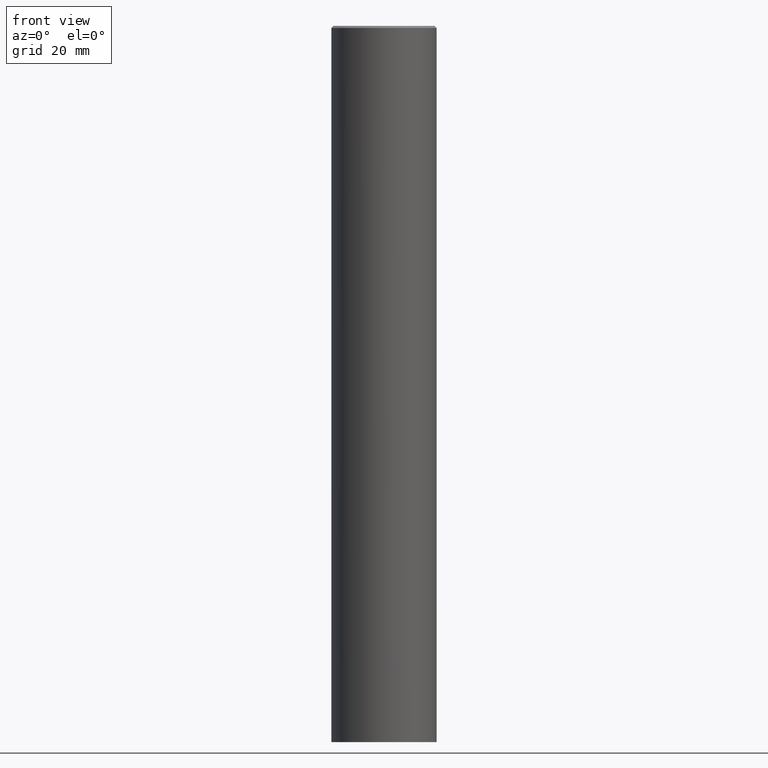
[diagram: clean part render]
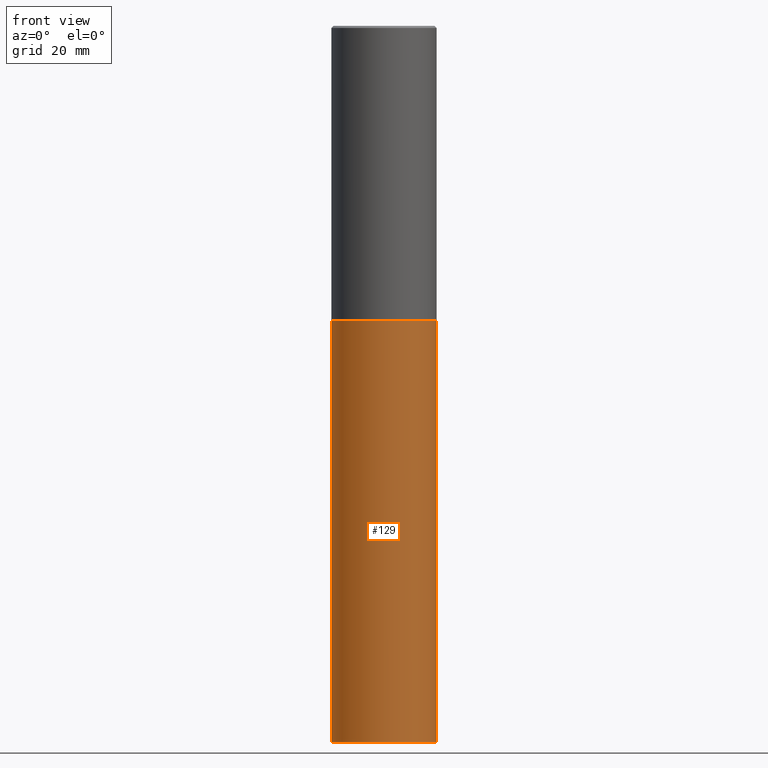
[diagram: same view with one face highlighted and labeled with its STEP entity id]
A machine part, front view. The second image highlights one B-rep face of the part: STEP entity #129.
In plain terms, the highlighted cylindrical surface (partial cylindrical patch) has radius 12.5006 mm, axis along (-0, 0, 1).
Its self-contained STEP definition (entity closure, byte-faithful):
#1 = ORIENTED_EDGE ( 'NONE', *, *, #71, .F. ) ;
#24 = VERTEX_POINT ( 'NONE', #175 ) ;
#28 = AXIS2_PLACEMENT_3D ( 'NONE', #329, #106, #326 ) ;
#34 = ORIENTED_EDGE ( 'NONE', *, *, #90, .T. ) ;
#37 = CARTESIAN_POINT ( 'NONE',  ( 0.000000000000000000, 0.000000000000000000, 0.000000000000000000 ) ) ;
#46 = CARTESIAN_POINT ( 'NONE',  ( -0.4921499999999999764, -1.299821836318722399E-14, -6.692899999999999849 ) ) ;
#66 = CIRCLE ( 'NONE', #28, 0.4921499999999999764 ) ;
#71 = EDGE_CURVE ( 'NONE', #314, #82, #334, .T. ) ;
#82 = VERTEX_POINT ( 'NONE', #364 ) ;
#87 = CARTESIAN_POINT ( 'NONE',  ( 0.4921499999999999764, -3.436665081823295777E-15, 2.399810400207969603E-29 ) ) ;
#90 = EDGE_CURVE ( 'NONE', #24, #195, #305, .T. ) ;
#98 = CIRCLE ( 'NONE', #246, 0.4921499999999999764 ) ;
#106 = DIRECTION ( 'NONE',  ( -2.445468806185136597E-29, 3.491481338843145583E-15, 1.000000000000000000 ) ) ;
#129 = ADVANCED_FACE ( 'NONE', ( #294 ), #180, .T. ) ;
#137 = EDGE_LOOP ( 'NONE', ( #1, #191, #34, #204 ) ) ;
#143 = VECTOR ( 'NONE', #234, 39.37007874015748143 ) ;
#157 = DIRECTION ( 'NONE',  ( 1.000000000000000000, -6.982962677686265922E-15, 0.000000000000000000 ) ) ;
#161 = DIRECTION ( 'NONE',  ( -2.445468806185136597E-29, 3.491481338843145583E-15, 1.000000000000000000 ) ) ;
#175 = CARTESIAN_POINT ( 'NONE',  ( 0.4921499999999999764, -2.680480053456658516E-14, -6.692899999999999849 ) ) ;
#180 = CYLINDRICAL_SURFACE ( 'NONE', #189, 0.4921499999999999764 ) ;
#189 = AXIS2_PLACEMENT_3D ( 'NONE', #37, #324, #323 ) ;
#190 = CARTESIAN_POINT ( 'NONE',  ( 6.739467482965618232E-29, -9.622173421717824390E-15, -2.755900000000000016 ) ) ;
#191 = ORIENTED_EDGE ( 'NONE', *, *, #291, .T. ) ;
#195 = VERTEX_POINT ( 'NONE', #350 ) ;
#200 = DIRECTION ( 'NONE',  ( -2.445468806185136877E-29, 3.491481338843145188E-15, 1.000000000000000000 ) ) ;
#204 = ORIENTED_EDGE ( 'NONE', *, *, #330, .F. ) ;
#234 = DIRECTION ( 'NONE',  ( -2.445468806185136877E-29, 3.491481338843145188E-15, 1.000000000000000000 ) ) ;
#246 = AXIS2_PLACEMENT_3D ( 'NONE', #190, #161, #157 ) ;
#258 = CARTESIAN_POINT ( 'NONE',  ( -0.4921499999999999764, 3.496936074043332897E-15, -2.420853904668951509E-29 ) ) ;
#287 = VECTOR ( 'NONE', #200, 39.37007874015748143 ) ;
#291 = EDGE_CURVE ( 'NONE', #314, #24, #66, .T. ) ;
#294 = FACE_OUTER_BOUND ( 'NONE', #137, .T. ) ;
#305 = LINE ( 'NONE', #87, #287 ) ;
#314 = VERTEX_POINT ( 'NONE', #46 ) ;
#323 = DIRECTION ( 'NONE',  ( 1.000000000000000000, -6.982962677686265922E-15, 4.876176775795935793E-29 ) ) ;
#324 = DIRECTION ( 'NONE',  ( -2.445468806185136597E-29, 3.491481338843145583E-15, 1.000000000000000000 ) ) ;
#326 = DIRECTION ( 'NONE',  ( 1.000000000000000000, -6.982962677686265922E-15, 0.000000000000000000 ) ) ;
#329 = CARTESIAN_POINT ( 'NONE',  ( 1.636727817291649966E-28, -2.336813545274328780E-14, -6.692899999999999849 ) ) ;
#330 = EDGE_CURVE ( 'NONE', #82, #195, #98, .T. ) ;
#334 = LINE ( 'NONE', #258, #143 ) ;
#350 = CARTESIAN_POINT ( 'NONE',  ( 0.4921499999999999764, -1.305883850354112017E-14, -2.755900000000000016 ) ) ;
#364 = CARTESIAN_POINT ( 'NONE',  ( -0.4921499999999999764, -1.299821836318722399E-14, -2.755900000000000016 ) ) ;